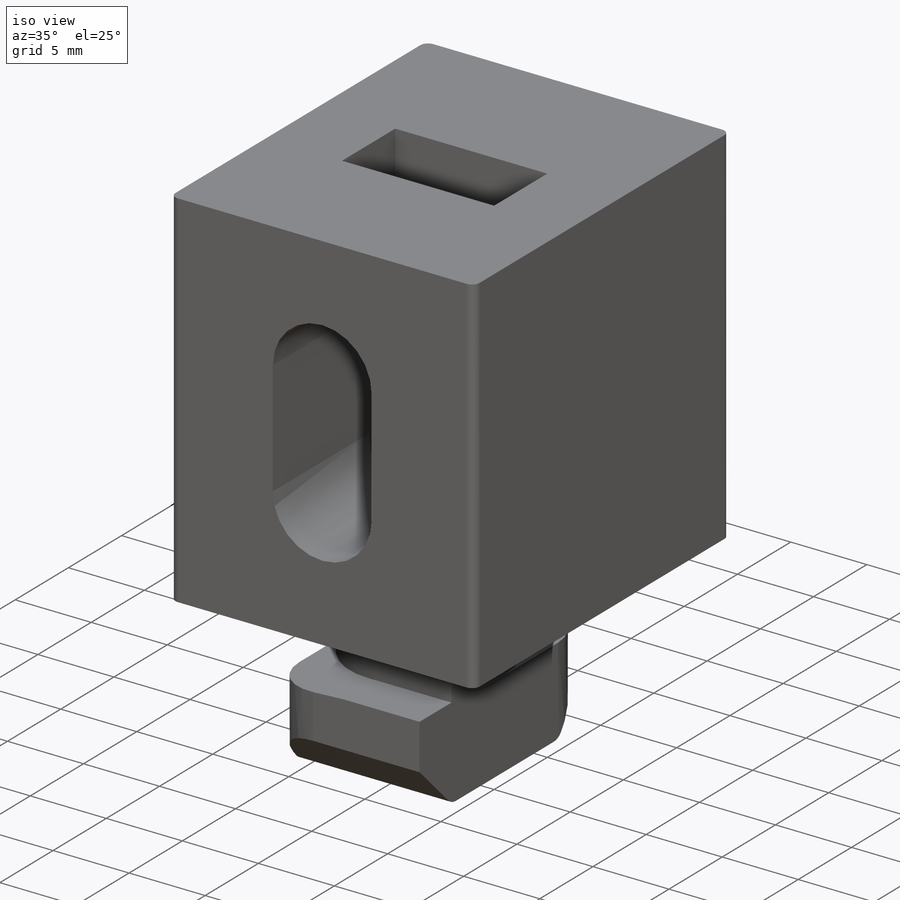
[diagram: iso view]
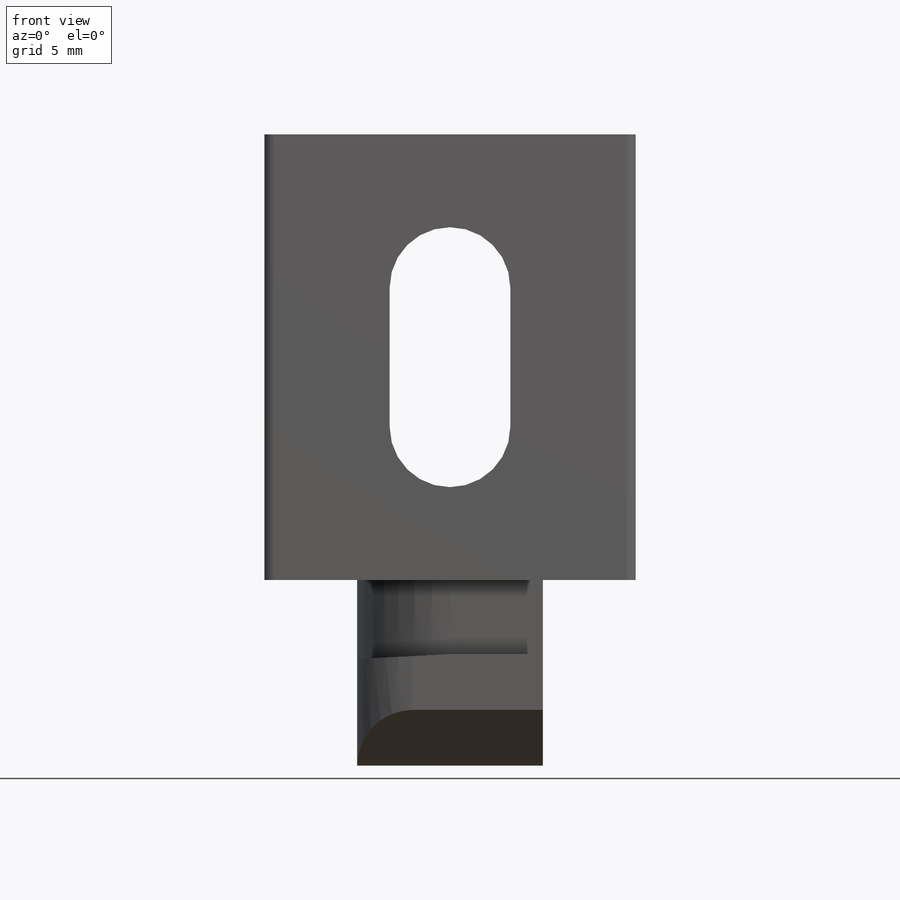
[diagram: front view]
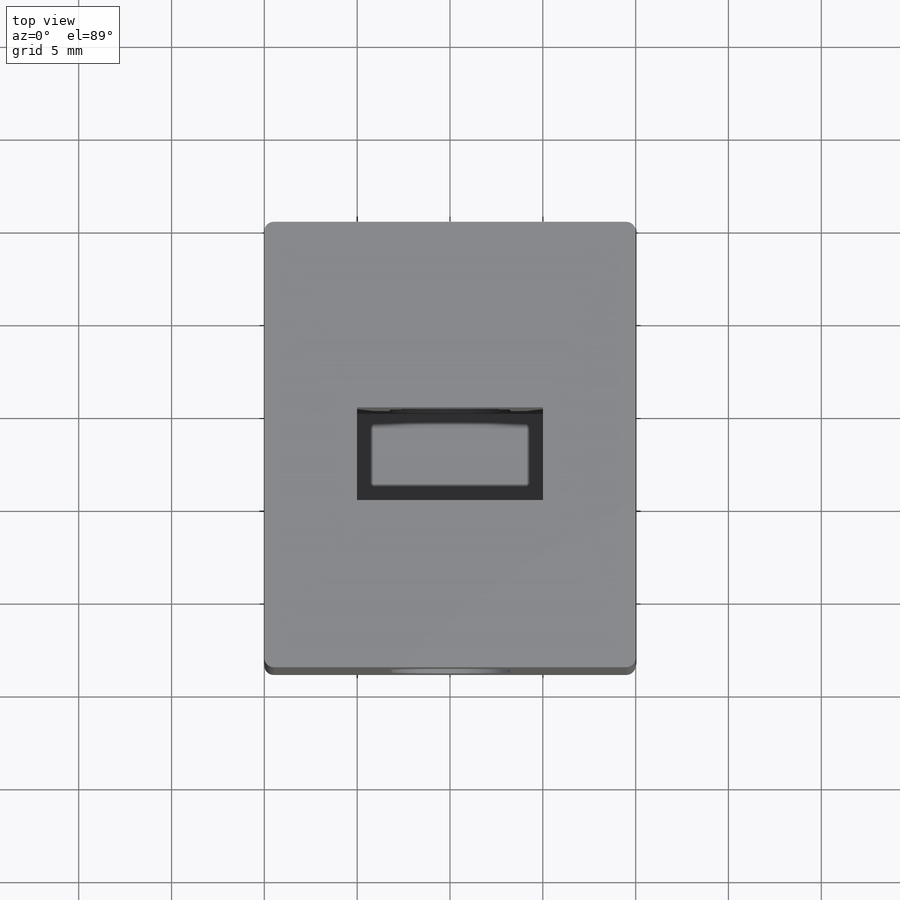
[diagram: top view]
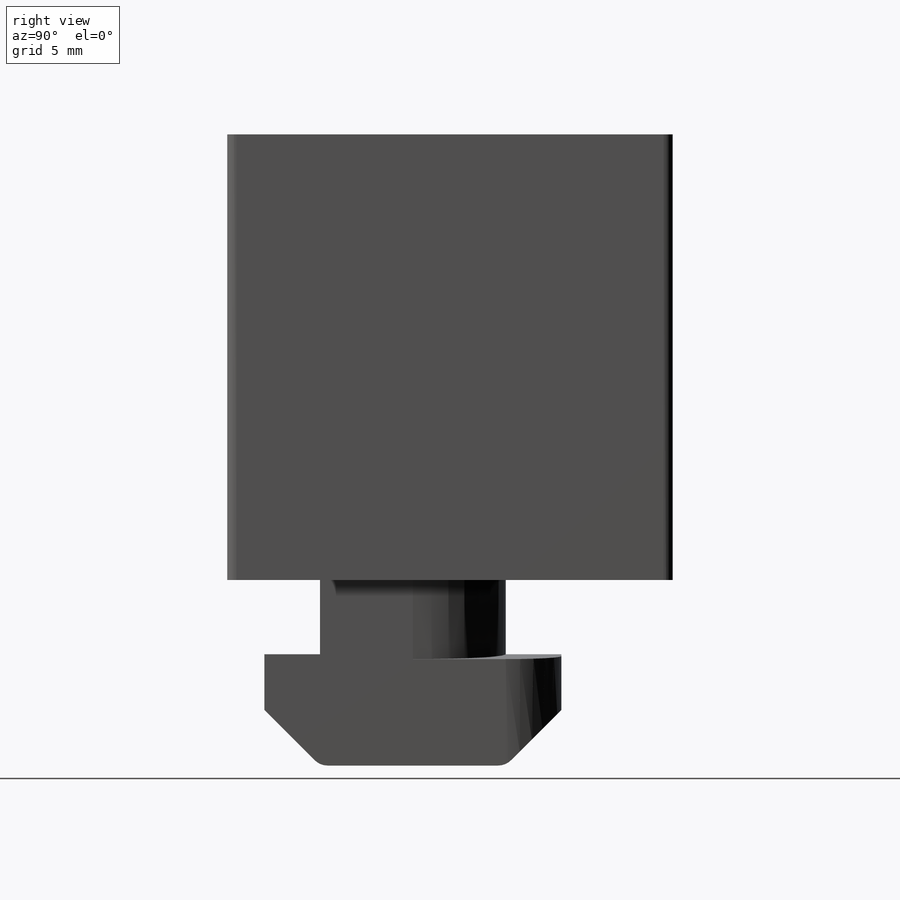
[diagram: right view]
SOLIDWORKS PART (.sldprt)
format: sldprt  version: not decoded by parser v0  size: 793,088 bytes
history: native  units: mm
features: sketch x7, cut_extrude x4, fillet x4, plane x3, extrude x3, chamfer x2, material x1 (+12 scaffold rows collapsed)
feature tree (36):
  scaffold x12  (default folders/planes/origin — collapsed)
  material  "材质 <未指定>"
  plane  "前视基准面"
  plane  "上视基准面"
  plane  "右视基准面"
  sketch  "草图1"  dims[D1=20.0mm D2=24.0mm]
  extrude  "拉伸1"  Depth=24mm
  sketch  "草图2"  dims[c1.D3=2.75mm c1.D4=2.75mm c1.D6=2.75mm c2.D3=~3.952847mm c2.D1=6.5mm c2.D2=6.75mm c3.D3=5.5mm c3.D5=8.25mm c3.D6=6.0mm c4.D3=7.5mm c4.D4=7.5mm c4.D6=8.25mm c4.D7=8.25mm c4.D8=16.0mm]
  cut_extrude  "切除-拉伸1"  Depth=24mm
  sketch  "草图3"  dims[D1=10.0mm D2=5.0mm D3=5.0mm D4=9.0mm]
  cut_extrude  "切除-拉伸2"  Depth=20mm
  sketch  "草图4"  dims[c1.D1=6.0mm c1.D2=6.0mm c2.D1=5.0mm c2.D2=5.0mm c2.D3=5.0mm c2.D4=5.0mm c2.D5=5.0mm c2.D6=5.0mm c2.D7=10.0mm c2.D8=5.0mm]
  extrude  "拉伸2"  Depth=10mm
  sketch  "草图5"  dims[c1.D1=16.0mm c1.D2=10.0mm c1.D3=~0.912474mm c1.D4=6.0mm c1.D5=~3.912474mm c2.D3=5.0mm c2.D5=5.0mm]
  extrude  "拉伸3"  Depth=6mm
  fillet  "圆角2"  Radius=0.5mm
  chamfer  "倒角3"  Distance=3mm Angle=45deg
  chamfer  "倒角4"  Distance=3mm Angle=45deg
  fillet  "圆角3"  Radius=1mm
  sketch  "草图8"  dims[c1.D1=3.0mm c2.D1=~9.462322deg c3.D1=3.0mm c4.D1=3.0deg]
  cut_extrude  "切除-拉伸3"  [1 undecoded]
  sketch  "草图9"  dims[c1.D1=3.0mm c2.D1=3.0deg]
  cut_extrude  "切除-拉伸4"  [1 undecoded]
  fillet  "圆角6"  Radius=3mm
  fillet  "圆角7"  Radius=3mm
decode coverage: 18 of 20 modeling features carry decoded parameters
note: ~ marks probable driven/reference dimensions
note: 2 parameter values undecoded
note: suppression state not decoded; provenance and decode notes live in map.json
